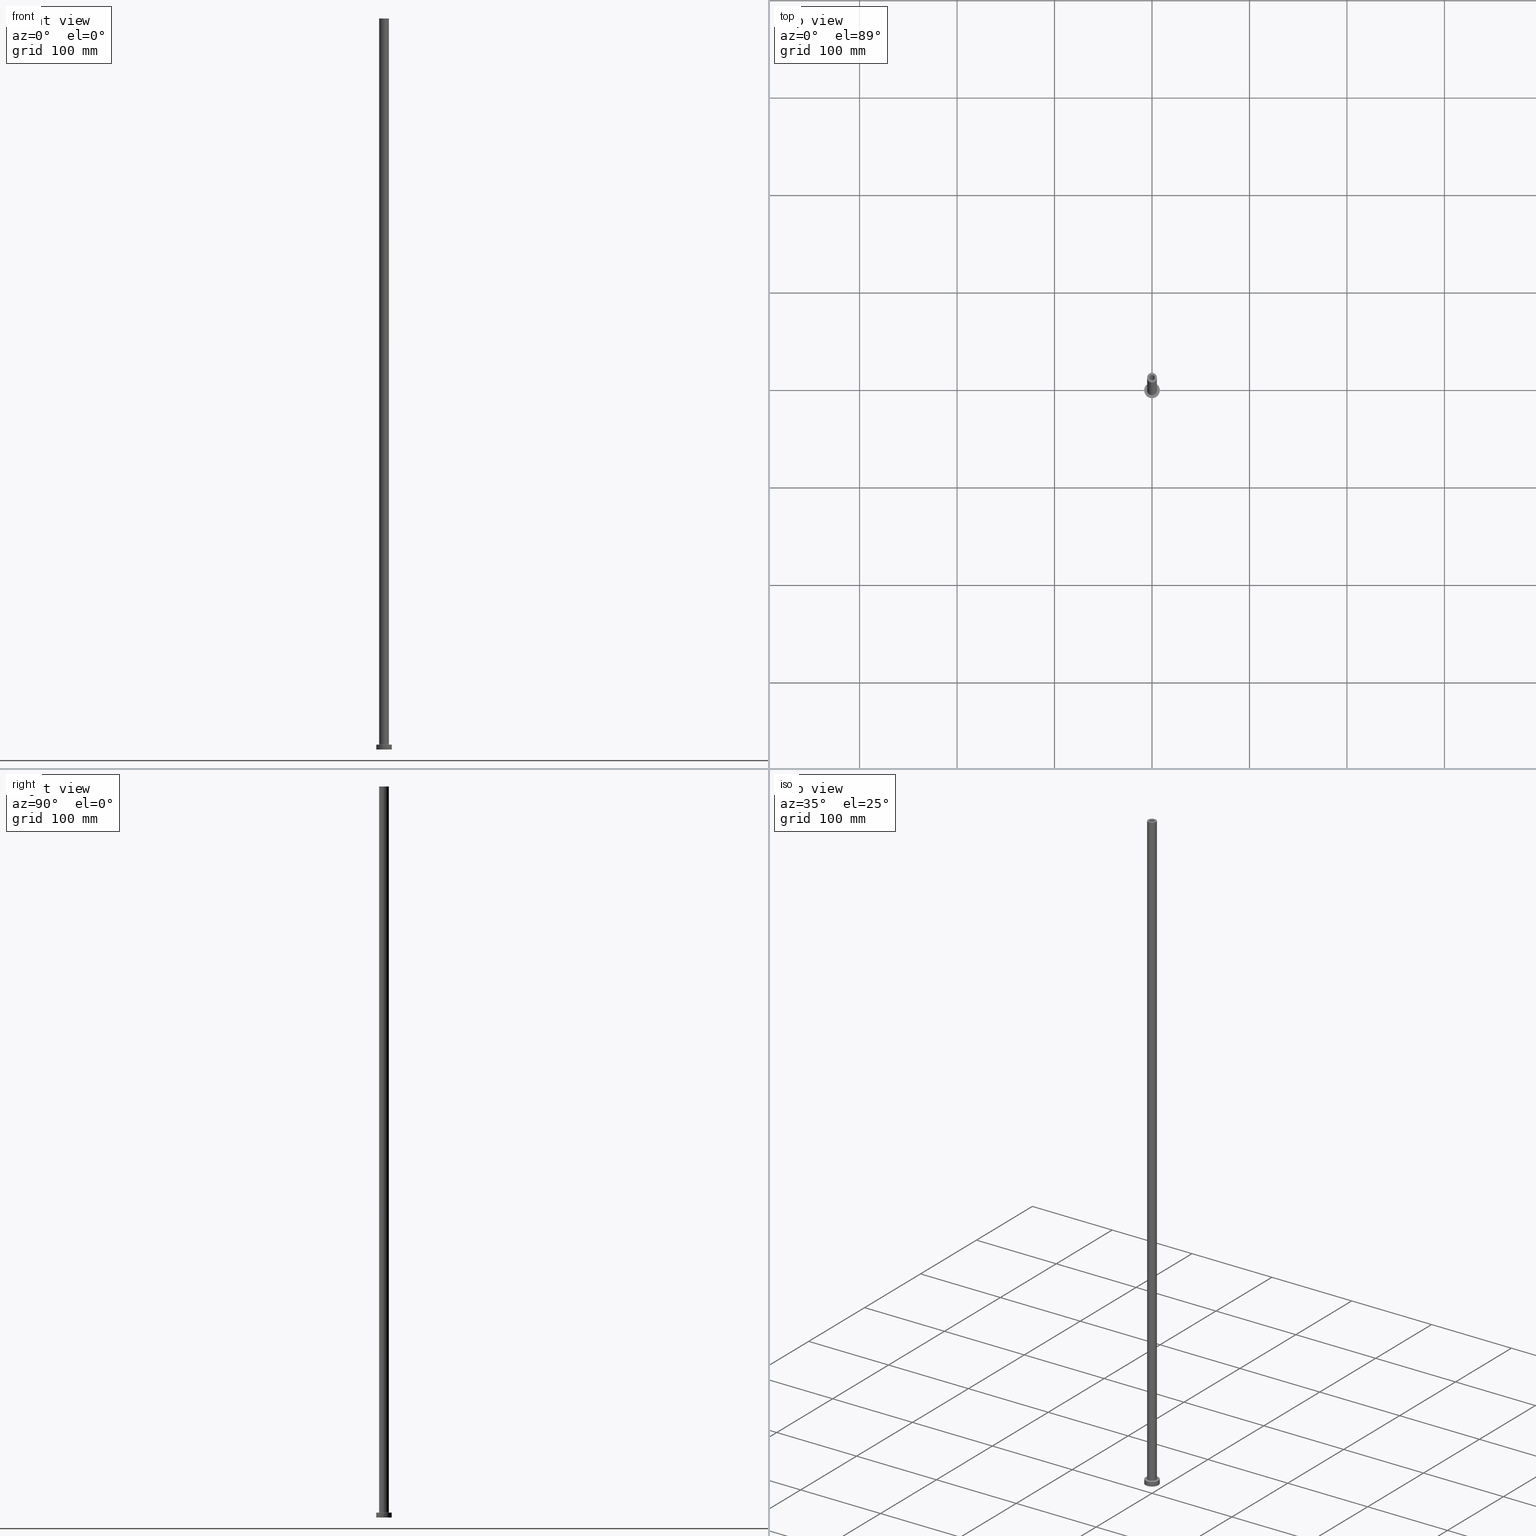
[diagram: canonical four-view strip — front | top / right | iso, engineering-drawing reading convention]
A machine part, canonical four-view strip (front | top / right | iso — engineering-drawing reading convention). The complete STEP part file that produces these views, byte-faithful:
ISO-10303-21;
HEADER;
FILE_DESCRIPTION (( 'STEP AP203' ),
    '1' );
FILE_NAME ('a435.STEP',
    '2023-02-13T16:11:10',
    ( '' ),
    ( '' ),
    'SwSTEP 2.0',
    'SolidWorks 2019',
    '' );
FILE_SCHEMA (( 'CONFIG_CONTROL_DESIGN' ));
ENDSEC;

DATA;
#1 = PERSON_AND_ORGANIZATION_ROLE ( 'classification_officer' ) ;
#2 = ORIENTED_EDGE ( 'NONE', *, *, #330, .F. ) ;
#3 = CC_DESIGN_PERSON_AND_ORGANIZATION_ASSIGNMENT ( #19, #319, ( #293 ) ) ;
#4 = CARTESIAN_POINT ( 'NONE',  ( 0.000000000000000000, 0.000000000000000000, 713.2024386617638356 ) ) ;
#5 = CIRCLE ( 'NONE', #70, 2.899999999999999911 ) ;
#6 = AXIS2_PLACEMENT_3D ( 'NONE', #290, #181, #95 ) ;
#7 = AXIS2_PLACEMENT_3D ( 'NONE', #124, #225, #8 ) ;
#8 = DIRECTION ( 'NONE',  ( 1.000000000000000000, 0.000000000000000000, 0.000000000000000000 ) ) ;
#9 = CARTESIAN_POINT ( 'NONE',  ( 2.899999999999999911, 3.551475717527323832E-16, 0.000000000000000000 ) ) ;
#10 = CARTESIAN_POINT ( 'NONE',  ( 0.000000000000000000, 0.000000000000000000, 0.000000000000000000 ) ) ;
#11 = CARTESIAN_POINT ( 'NONE',  ( 2.899999999999999911, 3.551475717527323832E-16, 705.0000000000000000 ) ) ;
#12 = PERSON ( 'NEUR�EN�', 'NEUR�EN�', 'NEUR�EN�', ('NEUR�EN�'), ('NEUR�EN�'), ('NEUR�EN�') ) ;
#13 = FACE_OUTER_BOUND ( 'NONE', #455, .T. ) ;
#14 = DIRECTION ( 'NONE',  ( -1.000000000000000000, 0.000000000000000000, 0.000000000000000000 ) ) ;
#15 = VECTOR ( 'NONE', #280, 1000.000000000000000 ) ;
#16 = DIRECTION ( 'NONE',  ( 1.000000000000000000, 0.000000000000000000, -0.000000000000000000 ) ) ;
#17 = CARTESIAN_POINT ( 'NONE',  ( 0.000000000000000000, 0.000000000000000000, 5.499999999999949374 ) ) ;
#18 = FACE_OUTER_BOUND ( 'NONE', #286, .T. ) ;
#19 = PERSON_AND_ORGANIZATION ( #12, #23 ) ;
#20 = DIRECTION ( 'NONE',  ( 0.000000000000000000, 0.000000000000000000, -1.000000000000000000 ) ) ;
#21 = DIRECTION ( 'NONE',  ( 0.000000000000000000, 0.000000000000000000, -1.000000000000000000 ) ) ;
#22 = COORDINATED_UNIVERSAL_TIME_OFFSET ( 1, 0, .AHEAD. ) ;
#23 = ORGANIZATION ( 'NEUR�EN�', 'NEUR�EN�', '' ) ;
#24 = CC_DESIGN_APPROVAL ( #179, ( #293 ) ) ;
#25 = VERTEX_POINT ( 'NONE', #144 ) ;
#26 = ORIENTED_EDGE ( 'NONE', *, *, #120, .F. ) ;
#27 = CARTESIAN_POINT ( 'NONE',  ( 0.000000000000000000, 0.000000000000000000, 705.0000000000000000 ) ) ;
#28 = CARTESIAN_POINT ( 'NONE',  ( 0.000000000000000000, 0.000000000000000000, 750.0000000000000000 ) ) ;
#29 = ADVANCED_FACE ( 'NONE', ( #75 ), #166, .F. ) ;
#30 = CARTESIAN_POINT ( 'NONE',  ( 0.000000000000000000, 0.000000000000000000, 750.0000000000000000 ) ) ;
#31 = AXIS2_PLACEMENT_3D ( 'NONE', #10, #428, #76 ) ;
#32 = ORIENTED_EDGE ( 'NONE', *, *, #433, .F. ) ;
#33 = CC_DESIGN_PERSON_AND_ORGANIZATION_ASSIGNMENT ( #117, #1, ( #380 ) ) ;
#34 = AXIS2_PLACEMENT_3D ( 'NONE', #50, #343, #97 ) ;
#35 = ORIENTED_EDGE ( 'NONE', *, *, #266, .T. ) ;
#36 = PERSON_AND_ORGANIZATION ( #12, #23 ) ;
#37 = ADVANCED_FACE ( 'NONE', ( #80 ), #81, .T. ) ;
#38 = SHAPE_DEFINITION_REPRESENTATION ( #125, #226 ) ;
#39 = ORIENTED_EDGE ( 'NONE', *, *, #88, .F. ) ;
#40 = CARTESIAN_POINT ( 'NONE',  ( 0.000000000000000000, 0.000000000000000000, 750.0000000000000000 ) ) ;
#41 = CARTESIAN_POINT ( 'NONE',  ( 0.000000000000000000, 0.000000000000000000, 0.000000000000000000 ) ) ;
#42 = APPROVAL_PERSON_ORGANIZATION ( #255, #227, #368 ) ;
#43 = CIRCLE ( 'NONE', #377, 2.899999999999999911 ) ;
#44 = DIRECTION ( 'NONE',  ( 1.000000000000000000, 0.000000000000000000, 0.000000000000000000 ) ) ;
#45 = CARTESIAN_POINT ( 'NONE',  ( 5.500000000000000000, 0.000000000000000000, 5.499999999999949374 ) ) ;
#46 = CARTESIAN_POINT ( 'NONE',  ( -8.000000000000000000, 0.000000000000000000, 5.000000000000000000 ) ) ;
#47 = ADVANCED_FACE ( 'NONE', ( #190 ), #89, .F. ) ;
#48 = DIRECTION ( 'NONE',  ( 1.000000000000000000, 0.000000000000000000, 0.000000000000000000 ) ) ;
#49 = DIRECTION ( 'NONE',  ( -1.000000000000000000, 0.000000000000000000, 0.000000000000000000 ) ) ;
#50 = CARTESIAN_POINT ( 'NONE',  ( 0.000000000000000000, 0.000000000000000000, 5.499999999999949374 ) ) ;
#51 = AXIS2_PLACEMENT_3D ( 'NONE', #331, #432, #401 ) ;
#52 = AXIS2_PLACEMENT_3D ( 'NONE', #223, #371, #347 ) ;
#53 = CARTESIAN_POINT ( 'NONE',  ( 2.750000000000000000, 3.367778697655221012E-16, 750.0000000000000000 ) ) ;
#54 = LINE ( 'NONE', #46, #197 ) ;
#55 = CC_DESIGN_PERSON_AND_ORGANIZATION_ASSIGNMENT ( #180, #325, ( #440 ) ) ;
#56 = CALENDAR_DATE ( 2023, 13, 2 ) ;
#57 = CARTESIAN_POINT ( 'NONE',  ( -5.000000000000000000, 0.000000000000000000, 750.0000000000000000 ) ) ;
#58 = CIRCLE ( 'NONE', #450, 8.000000000000000000 ) ;
#59 = CARTESIAN_POINT ( 'NONE',  ( 0.000000000000000000, 0.000000000000000000, 750.0000000000000000 ) ) ;
#60 = DIRECTION ( 'NONE',  ( 0.000000000000000000, 0.000000000000000000, 1.000000000000000000 ) ) ;
#61 = ORIENTED_EDGE ( 'NONE', *, *, #441, .T. ) ;
#62 = ORIENTED_EDGE ( 'NONE', *, *, #266, .F. ) ;
#63 = CC_DESIGN_DATE_AND_TIME_ASSIGNMENT ( #442, #198, ( #305 ) ) ;
#64 = FACE_OUTER_BOUND ( 'NONE', #324, .T. ) ;
#65 =( NAMED_UNIT ( * ) PLANE_ANGLE_UNIT ( ) SI_UNIT ( $, .RADIAN. ) );
#66 = ORIENTED_EDGE ( 'NONE', *, *, #209, .T. ) ;
#67 = DIRECTION ( 'NONE',  ( -1.000000000000000000, 0.000000000000000000, 0.000000000000000000 ) ) ;
#68 = AXIS2_PLACEMENT_3D ( 'NONE', #4, #73, #218 ) ;
#69 = ORIENTED_EDGE ( 'NONE', *, *, #92, .F. ) ;
#70 = AXIS2_PLACEMENT_3D ( 'NONE', #405, #165, #128 ) ;
#71 = ORIENTED_EDGE ( 'NONE', *, *, #344, .T. ) ;
#72 = VERTEX_POINT ( 'NONE', #407 ) ;
#73 = DIRECTION ( 'NONE',  ( 0.000000000000000000, 0.000000000000000000, -1.000000000000000000 ) ) ;
#74 = AXIS2_PLACEMENT_3D ( 'NONE', #423, #396, #372 ) ;
#75 = FACE_OUTER_BOUND ( 'NONE', #235, .T. ) ;
#76 = DIRECTION ( 'NONE',  ( 1.000000000000000000, 0.000000000000000000, 0.000000000000000000 ) ) ;
#77 = VECTOR ( 'NONE', #269, 1000.000000000000000 ) ;
#78 = EDGE_CURVE ( 'NONE', #208, #291, #149, .T. ) ;
#79 = ORIENTED_EDGE ( 'NONE', *, *, #451, .F. ) ;
#80 = FACE_OUTER_BOUND ( 'NONE', #262, .T. ) ;
#81 = CYLINDRICAL_SURFACE ( 'NONE', #52, 8.000000000000000000 ) ;
#82 = FACE_OUTER_BOUND ( 'NONE', #118, .T. ) ;
#83 = APPLICATION_PROTOCOL_DEFINITION ( 'international standard', 'config_control_design', 1994, #141 ) ;
#84 = AXIS2_PLACEMENT_3D ( 'NONE', #131, #409, #94 ) ;
#85 = APPROVAL_PERSON_ORGANIZATION ( #159, #179, #238 ) ;
#86 = CARTESIAN_POINT ( 'NONE',  ( 0.000000000000000000, 0.000000000000000000, 0.000000000000000000 ) ) ;
#87 = LINE ( 'NONE', #196, #334 ) ;
#88 = EDGE_CURVE ( 'NONE', #233, #184, #278, .T. ) ;
#89 = CYLINDRICAL_SURFACE ( 'NONE', #358, 2.750000000000000000 ) ;
#90 = CARTESIAN_POINT ( 'NONE',  ( 5.000000000000000000, 6.123233995736766282E-16, 750.0000000000000000 ) ) ;
#91 = DIRECTION ( 'NONE',  ( -1.000000000000000000, 0.000000000000000000, 0.000000000000000000 ) ) ;
#92 = EDGE_CURVE ( 'NONE', #245, #399, #5, .T. ) ;
#93 = DATE_AND_TIME ( #56, #439 ) ;
#94 = DIRECTION ( 'NONE',  ( 1.000000000000000000, 0.000000000000000000, -0.000000000000000000 ) ) ;
#95 = DIRECTION ( 'NONE',  ( 1.000000000000000000, 0.000000000000000000, 0.000000000000000000 ) ) ;
#96 = DIRECTION ( 'NONE',  ( 0.000000000000000000, 0.000000000000000000, 1.000000000000000000 ) ) ;
#97 = DIRECTION ( 'NONE',  ( 1.000000000000000000, 0.000000000000000000, 0.000000000000000000 ) ) ;
#98 = LINE ( 'NONE', #236, #387 ) ;
#99 = CARTESIAN_POINT ( 'NONE',  ( 0.000000000000000000, 0.000000000000000000, 750.0000000000000000 ) ) ;
#100 = VERTEX_POINT ( 'NONE', #53 ) ;
#101 = AXIS2_PLACEMENT_3D ( 'NONE', #28, #171, #390 ) ;
#102 = DATE_AND_TIME ( #340, #130 ) ;
#103 = ADVANCED_FACE ( 'NONE', ( #153, #304 ), #161, .F. ) ;
#104 = ORIENTED_EDGE ( 'NONE', *, *, #441, .F. ) ;
#105 = ORIENTED_EDGE ( 'NONE', *, *, #156, .F. ) ;
#106 = VERTEX_POINT ( 'NONE', #381 ) ;
#107 = CC_DESIGN_APPROVAL ( #360, ( #305 ) ) ;
#108 = ORIENTED_EDGE ( 'NONE', *, *, #189, .T. ) ;
#109 = COORDINATED_UNIVERSAL_TIME_OFFSET ( 1, 0, .AHEAD. ) ;
#110 = CALENDAR_DATE ( 2023, 13, 2 ) ;
#111 = VERTEX_POINT ( 'NONE', #436 ) ;
#112 = ORIENTED_EDGE ( 'NONE', *, *, #419, .T. ) ;
#113 = EDGE_CURVE ( 'NONE', #72, #233, #411, .T. ) ;
#114 = DIRECTION ( 'NONE',  ( 1.000000000000000000, 0.000000000000000000, 0.000000000000000000 ) ) ;
#115 = EDGE_LOOP ( 'NONE', ( #461, #426 ) ) ;
#116 = AXIS2_PLACEMENT_3D ( 'NONE', #40, #303, #382 ) ;
#117 = PERSON_AND_ORGANIZATION ( #12, #23 ) ;
#118 = EDGE_LOOP ( 'NONE', ( #240, #248 ) ) ;
#119 = DIRECTION ( 'NONE',  ( 1.000000000000000000, 0.000000000000000000, 0.000000000000000000 ) ) ;
#120 = EDGE_CURVE ( 'NONE', #138, #111, #87, .T. ) ;
#121 = CARTESIAN_POINT ( 'NONE',  ( 0.000000000000000000, 0.000000000000000000, 750.0000000000000000 ) ) ;
#122 = CIRCLE ( 'NONE', #224, 2.750000000000000000 ) ;
#123 = CARTESIAN_POINT ( 'NONE',  ( 0.000000000000000000, 0.000000000000000000, 750.0000000000000000 ) ) ;
#124 = CARTESIAN_POINT ( 'NONE',  ( 0.000000000000000000, 0.000000000000000000, 705.0000000000000000 ) ) ;
#125 = PRODUCT_DEFINITION_SHAPE ( 'NONE', 'NONE',  #305 ) ;
#126 = EDGE_CURVE ( 'NONE', #175, #211, #446, .T. ) ;
#127 = CARTESIAN_POINT ( 'NONE',  ( 0.000000000000000000, 0.000000000000000000, 5.000000000000000000 ) ) ;
#128 = DIRECTION ( 'NONE',  ( 1.000000000000000000, 0.000000000000000000, 0.000000000000000000 ) ) ;
#129 = CARTESIAN_POINT ( 'NONE',  ( -5.000000000000000000, 0.000000000000000000, 750.0000000000000000 ) ) ;
#130 = LOCAL_TIME ( 17, 11, 10.00000000000000000, #22 ) ;
#131 = CARTESIAN_POINT ( 'NONE',  ( 0.000000000000000000, 0.000000000000000000, 750.0000000000000000 ) ) ;
#132 = EDGE_CURVE ( 'NONE', #297, #111, #421, .T. ) ;
#133 = ORIENTED_EDGE ( 'NONE', *, *, #135, .F. ) ;
#134 = ORIENTED_EDGE ( 'NONE', *, *, #451, .T. ) ;
#135 = EDGE_CURVE ( 'NONE', #292, #208, #168, .T. ) ;
#136 = APPROVAL_ROLE ( '' ) ;
#137 = AXIS2_PLACEMENT_3D ( 'NONE', #140, #191, #114 ) ;
#138 = VERTEX_POINT ( 'NONE', #404 ) ;
#139 = APPROVAL_STATUS ( 'not_yet_approved' ) ;
#140 = CARTESIAN_POINT ( 'NONE',  ( 0.000000000000000000, 0.000000000000000000, 5.000000000000000000 ) ) ;
#141 = APPLICATION_CONTEXT ( 'configuration controlled 3d designs of mechanical parts and assemblies' ) ;
#142 = ORIENTED_EDGE ( 'NONE', *, *, #135, .T. ) ;
#143 = ORIENTED_EDGE ( 'NONE', *, *, #172, .T. ) ;
#144 = CARTESIAN_POINT ( 'NONE',  ( -8.000000000000000000, 0.000000000000000000, 5.000000000000000000 ) ) ;
#145 = CYLINDRICAL_SURFACE ( 'NONE', #395, 2.899999999999999911 ) ;
#146 = ORIENTED_EDGE ( 'NONE', *, *, #88, .T. ) ;
#147 = AXIS2_PLACEMENT_3D ( 'NONE', #99, #205, #354 ) ;
#148 = FACE_BOUND ( 'NONE', #249, .T. ) ;
#149 = CIRCLE ( 'NONE', #214, 0.5000000000000004441 ) ;
#150 = EDGE_LOOP ( 'NONE', ( #364, #170, #174, #210 ) ) ;
#151 = PLANE ( 'NONE',  #326 ) ;
#152 = DESIGN_CONTEXT ( 'detailed design', #241, 'design' ) ;
#153 = FACE_BOUND ( 'NONE', #239, .T. ) ;
#154 = CARTESIAN_POINT ( 'NONE',  ( 0.000000000000000000, 0.000000000000000000, 5.000000000000000000 ) ) ;
#155 = AXIS2_PLACEMENT_3D ( 'NONE', #123, #21, #91 ) ;
#156 = EDGE_CURVE ( 'NONE', #361, #452, #43, .T. ) ;
#157 = DIRECTION ( 'NONE',  ( -0.000000000000000000, -0.000000000000000000, -1.000000000000000000 ) ) ;
#158 = FACE_OUTER_BOUND ( 'NONE', #389, .T. ) ;
#159 = PERSON_AND_ORGANIZATION ( #12, #23 ) ;
#160 = DIRECTION ( 'NONE',  ( 0.000000000000000000, 0.000000000000000000, 1.000000000000000000 ) ) ;
#161 = PLANE ( 'NONE',  #230 ) ;
#162 = DIRECTION ( 'NONE',  ( -0.000000000000000000, -0.000000000000000000, -1.000000000000000000 ) ) ;
#163 = DIRECTION ( 'NONE',  ( 0.000000000000000000, 0.000000000000000000, -1.000000000000000000 ) ) ;
#164 = CARTESIAN_POINT ( 'NONE',  ( -2.899999999999999911, 0.000000000000000000, 705.0000000000000000 ) ) ;
#165 = DIRECTION ( 'NONE',  ( 0.000000000000000000, 0.000000000000000000, 1.000000000000000000 ) ) ;
#166 = TOROIDAL_SURFACE ( 'NONE', #212, 5.500000000000000000, 0.5000000000000000000 ) ;
#167 = DIRECTION ( 'NONE',  ( 1.000000000000000000, 0.000000000000000000, 0.000000000000000000 ) ) ;
#168 = LINE ( 'NONE', #57, #77 ) ;
#169 = LOCAL_TIME ( 17, 11, 10.00000000000000000, #443 ) ;
#170 = ORIENTED_EDGE ( 'NONE', *, *, #298, .F. ) ;
#171 = DIRECTION ( 'NONE',  ( 0.000000000000000000, 0.000000000000000000, 1.000000000000000000 ) ) ;
#172 = EDGE_CURVE ( 'NONE', #399, #361, #318, .T. ) ;
#173 = DIRECTION ( 'NONE',  ( 0.000000000000000000, 0.000000000000000000, 1.000000000000000000 ) ) ;
#174 = ORIENTED_EDGE ( 'NONE', *, *, #126, .T. ) ;
#175 = VERTEX_POINT ( 'NONE', #447 ) ;
#176 = DIRECTION ( 'NONE',  ( -0.000000000000000000, -0.000000000000000000, -1.000000000000000000 ) ) ;
#177 = ORIENTED_EDGE ( 'NONE', *, *, #294, .T. ) ;
#178 = CIRCLE ( 'NONE', #231, 5.000000000000000000 ) ;
#179 = APPROVAL ( #274, 'NEUR�EN�' ) ;
#180 = PERSON_AND_ORGANIZATION ( #12, #23 ) ;
#181 = DIRECTION ( 'NONE',  ( 0.000000000000000000, 0.000000000000000000, 1.000000000000000000 ) ) ;
#182 = DIRECTION ( 'NONE',  ( 1.000000000000000000, 0.000000000000000000, 0.000000000000000000 ) ) ;
#183 = DATE_AND_TIME ( #427, #295 ) ;
#184 = VERTEX_POINT ( 'NONE', #282 ) ;
#185 = ORIENTED_EDGE ( 'NONE', *, *, #433, .T. ) ;
#186 = ORIENTED_EDGE ( 'NONE', *, *, #113, .F. ) ;
#187 = FACE_OUTER_BOUND ( 'NONE', #397, .T. ) ;
#188 = DIRECTION ( 'NONE',  ( 1.000000000000000000, 0.000000000000000000, 0.000000000000000000 ) ) ;
#189 = EDGE_CURVE ( 'NONE', #292, #106, #220, .T. ) ;
#190 = FACE_OUTER_BOUND ( 'NONE', #370, .T. ) ;
#191 = DIRECTION ( 'NONE',  ( -0.000000000000000000, -0.000000000000000000, -1.000000000000000000 ) ) ;
#192 = CARTESIAN_POINT ( 'NONE',  ( -2.750000000000000000, 0.000000000000000000, 705.0000000000000000 ) ) ;
#193 = DIRECTION ( 'NONE',  ( 0.000000000000000000, -1.000000000000000000, 0.000000000000000000 ) ) ;
#194 = CARTESIAN_POINT ( 'NONE',  ( 0.000000000000000000, 0.000000000000000000, 0.000000000000000000 ) ) ;
#195 = EDGE_CURVE ( 'NONE', #106, #292, #203, .T. ) ;
#196 = CARTESIAN_POINT ( 'NONE',  ( 8.000000000000000000, 9.797174393178825657E-16, 5.000000000000000000 ) ) ;
#197 = VECTOR ( 'NONE', #339, 1000.000000000000000 ) ;
#198 = DATE_TIME_ROLE ( 'creation_date' ) ;
#199 = DIRECTION ( 'NONE',  ( 0.000000000000000000, 0.000000000000000000, 1.000000000000000000 ) ) ;
#200 = CARTESIAN_POINT ( 'NONE',  ( -8.000000000000000000, 0.000000000000000000, 0.000000000000000000 ) ) ;
#201 = ADVANCED_FACE ( 'NONE', ( #64 ), #228, .F. ) ;
#202 = ORIENTED_EDGE ( 'NONE', *, *, #189, .F. ) ;
#203 = CIRCLE ( 'NONE', #101, 5.000000000000000000 ) ;
#204 = CARTESIAN_POINT ( 'NONE',  ( -5.500000000000000000, 6.735557395310442023E-16, 4.999999999999975131 ) ) ;
#205 = DIRECTION ( 'NONE',  ( 0.000000000000000000, 0.000000000000000000, 1.000000000000000000 ) ) ;
#206 = ORIENTED_EDGE ( 'NONE', *, *, #234, .T. ) ;
#207 = ORIENTED_EDGE ( 'NONE', *, *, #247, .T. ) ;
#208 = VERTEX_POINT ( 'NONE', #276 ) ;
#209 = EDGE_CURVE ( 'NONE', #25, #297, #54, .T. ) ;
#210 = ORIENTED_EDGE ( 'NONE', *, *, #272, .F. ) ;
#211 = VERTEX_POINT ( 'NONE', #337 ) ;
#212 = AXIS2_PLACEMENT_3D ( 'NONE', #400, #302, #267 ) ;
#213 = APPROVAL_PERSON_ORGANIZATION ( #36, #360, #136 ) ;
#214 = AXIS2_PLACEMENT_3D ( 'NONE', #312, #268, #336 ) ;
#215 = ORIENTED_EDGE ( 'NONE', *, *, #247, .F. ) ;
#216 = ORIENTED_EDGE ( 'NONE', *, *, #209, .F. ) ;
#217 = ORIENTED_EDGE ( 'NONE', *, *, #330, .T. ) ;
#218 = DIRECTION ( 'NONE',  ( -1.000000000000000000, 0.000000000000000000, 0.000000000000000000 ) ) ;
#219 = CC_DESIGN_PERSON_AND_ORGANIZATION_ASSIGNMENT ( #445, #413, ( #293 ) ) ;
#220 = CIRCLE ( 'NONE', #147, 5.000000000000000000 ) ;
#221 = CYLINDRICAL_SURFACE ( 'NONE', #68, 2.899999999999999911 ) ;
#222 = CC_DESIGN_DATE_AND_TIME_ASSIGNMENT ( #460, #260, ( #380 ) ) ;
#223 = CARTESIAN_POINT ( 'NONE',  ( 0.000000000000000000, 0.000000000000000000, 5.000000000000000000 ) ) ;
#224 = AXIS2_PLACEMENT_3D ( 'NONE', #229, #96, #167 ) ;
#225 = DIRECTION ( 'NONE',  ( 0.000000000000000000, 0.000000000000000000, 1.000000000000000000 ) ) ;
#226 = ADVANCED_BREP_SHAPE_REPRESENTATION ( 'a435', ( #246, #6 ), #357 ) ;
#227 = APPROVAL ( #139, 'NEUR�EN�' ) ;
#228 = CYLINDRICAL_SURFACE ( 'NONE', #155, 2.750000000000000000 ) ;
#229 = CARTESIAN_POINT ( 'NONE',  ( 0.000000000000000000, 0.000000000000000000, 750.0000000000000000 ) ) ;
#230 = AXIS2_PLACEMENT_3D ( 'NONE', #275, #383, #16 ) ;
#231 = AXIS2_PLACEMENT_3D ( 'NONE', #17, #277, #414 ) ;
#232 = DIRECTION ( 'NONE',  ( 0.000000000000000000, 0.000000000000000000, -1.000000000000000000 ) ) ;
#233 = VERTEX_POINT ( 'NONE', #192 ) ;
#234 = EDGE_CURVE ( 'NONE', #106, #175, #348, .T. ) ;
#235 = EDGE_LOOP ( 'NONE', ( #215, #321, #257, #327 ) ) ;
#236 = CARTESIAN_POINT ( 'NONE',  ( 2.750000000000000000, 3.367778697655221012E-16, 750.0000000000000000 ) ) ;
#237 = DIRECTION ( 'NONE',  ( -0.000000000000000000, -0.000000000000000000, -1.000000000000000000 ) ) ;
#238 = APPROVAL_ROLE ( '' ) ;
#239 = EDGE_LOOP ( 'NONE', ( #146, #134 ) ) ;
#240 = ORIENTED_EDGE ( 'NONE', *, *, #132, .F. ) ;
#241 = APPLICATION_CONTEXT ( 'configuration controlled 3d designs of mechanical parts and assemblies' ) ;
#242 = TOROIDAL_SURFACE ( 'NONE', #51, 5.500000000000000000, 0.5000000000000000000 ) ;
#243 = CC_DESIGN_APPROVAL ( #227, ( #380 ) ) ;
#244 = CYLINDRICAL_SURFACE ( 'NONE', #417, 5.000000000000000000 ) ;
#245 = VERTEX_POINT ( 'NONE', #11 ) ;
#246 = MANIFOLD_SOLID_BREP ( 'Odebrat vysunut�m4', #250 ) ;
#247 = EDGE_CURVE ( 'NONE', #208, #175, #351, .T. ) ;
#248 = ORIENTED_EDGE ( 'NONE', *, *, #344, .F. ) ;
#249 = EDGE_LOOP ( 'NONE', ( #105, #261 ) ) ;
#250 = CLOSED_SHELL ( 'NONE', ( #201, #367, #29, #448, #37, #256, #459, #388, #425, #406, #376, #375, #103, #47 ) ) ;
#251 = LINE ( 'NONE', #359, #306 ) ;
#252 =( NAMED_UNIT ( * ) SI_UNIT ( $, .STERADIAN. ) SOLID_ANGLE_UNIT ( ) );
#253 = AXIS2_PLACEMENT_3D ( 'NONE', #45, #193, #308 ) ;
#254 = ORIENTED_EDGE ( 'NONE', *, *, #285, .T. ) ;
#255 = PERSON_AND_ORGANIZATION ( #12, #23 ) ;
#256 = ADVANCED_FACE ( 'NONE', ( #158 ), #271, .T. ) ;
#257 = ORIENTED_EDGE ( 'NONE', *, *, #338, .F. ) ;
#258 = COORDINATED_UNIVERSAL_TIME_OFFSET ( 1, 0, .AHEAD. ) ;
#259 = FACE_OUTER_BOUND ( 'NONE', #456, .T. ) ;
#260 = DATE_TIME_ROLE ( 'classification_date' ) ;
#261 = ORIENTED_EDGE ( 'NONE', *, *, #285, .F. ) ;
#262 = EDGE_LOOP ( 'NONE', ( #104, #398, #71, #216 ) ) ;
#263 = DIRECTION ( 'NONE',  ( -1.000000000000000000, 0.000000000000000000, 0.000000000000000000 ) ) ;
#264 = CIRCLE ( 'NONE', #410, 5.500000000000000000 ) ;
#265 = EDGE_LOOP ( 'NONE', ( #108, #457 ) ) ;
#266 = EDGE_CURVE ( 'NONE', #25, #138, #58, .T. ) ;
#267 = DIRECTION ( 'NONE',  ( 1.000000000000000000, 0.000000000000000000, 0.000000000000000000 ) ) ;
#268 = DIRECTION ( 'NONE',  ( 1.224646799147353207E-16, 1.000000000000000000, -0.000000000000000000 ) ) ;
#269 = DIRECTION ( 'NONE',  ( -0.000000000000000000, -0.000000000000000000, -1.000000000000000000 ) ) ;
#270 = CARTESIAN_POINT ( 'NONE',  ( -2.750000000000000000, 0.000000000000000000, 750.0000000000000000 ) ) ;
#271 = CYLINDRICAL_SURFACE ( 'NONE', #350, 8.000000000000000000 ) ;
#272 = EDGE_CURVE ( 'NONE', #291, #211, #264, .T. ) ;
#273 = DIRECTION ( 'NONE',  ( 1.000000000000000000, 0.000000000000000000, 0.000000000000000000 ) ) ;
#274 = APPROVAL_STATUS ( 'not_yet_approved' ) ;
#275 = CARTESIAN_POINT ( 'NONE',  ( 0.000000000000000000, 0.000000000000000000, 705.0000000000000000 ) ) ;
#276 = CARTESIAN_POINT ( 'NONE',  ( -5.000000000000000000, 0.000000000000000000, 5.499999999999949374 ) ) ;
#277 = DIRECTION ( 'NONE',  ( 0.000000000000000000, 0.000000000000000000, 1.000000000000000000 ) ) ;
#278 = CIRCLE ( 'NONE', #7, 2.750000000000000000 ) ;
#279 = CC_DESIGN_PERSON_AND_ORGANIZATION_ASSIGNMENT ( #378, #449, ( #305 ) ) ;
#280 = DIRECTION ( 'NONE',  ( -0.000000000000000000, -0.000000000000000000, -1.000000000000000000 ) ) ;
#281 = CARTESIAN_POINT ( 'NONE',  ( 0.000000000000000000, 0.000000000000000000, 5.000000000000000000 ) ) ;
#282 = CARTESIAN_POINT ( 'NONE',  ( 2.750000000000000000, 3.367778697655221012E-16, 705.0000000000000000 ) ) ;
#283 = FACE_BOUND ( 'NONE', #115, .T. ) ;
#284 = DIRECTION ( 'NONE',  ( 0.000000000000000000, 0.000000000000000000, 1.000000000000000000 ) ) ;
#285 = EDGE_CURVE ( 'NONE', #452, #361, #366, .T. ) ;
#286 = EDGE_LOOP ( 'NONE', ( #458, #206, #385, #133 ) ) ;
#287 = CIRCLE ( 'NONE', #74, 8.000000000000000000 ) ;
#288 = AXIS2_PLACEMENT_3D ( 'NONE', #322, #60, #119 ) ;
#289 = DIRECTION ( 'NONE',  ( 0.000000000000000000, 0.000000000000000000, 1.000000000000000000 ) ) ;
#290 = CARTESIAN_POINT ( 'NONE',  ( 0.000000000000000000, 0.000000000000000000, 0.000000000000000000 ) ) ;
#291 = VERTEX_POINT ( 'NONE', #204 ) ;
#292 = VERTEX_POINT ( 'NONE', #129 ) ;
#293 = PRODUCT_DEFINITION_FORMATION_WITH_SPECIFIED_SOURCE ( 'LIBOVOLN�', '', #440, .NOT_KNOWN. ) ;
#294 = EDGE_CURVE ( 'NONE', #72, #100, #122, .T. ) ;
#295 = LOCAL_TIME ( 17, 11, 10.00000000000000000, #258 ) ;
#296 = DIRECTION ( 'NONE',  ( 0.000000000000000000, 0.000000000000000000, -1.000000000000000000 ) ) ;
#297 = VERTEX_POINT ( 'NONE', #200 ) ;
#298 = EDGE_CURVE ( 'NONE', #175, #208, #178, .T. ) ;
#299 = VECTOR ( 'NONE', #163, 1000.000000000000000 ) ;
#300 = AXIS2_PLACEMENT_3D ( 'NONE', #345, #313, #188 ) ;
#301 = CC_DESIGN_SECURITY_CLASSIFICATION ( #380, ( #293 ) ) ;
#302 = DIRECTION ( 'NONE',  ( 0.000000000000000000, 0.000000000000000000, 1.000000000000000000 ) ) ;
#303 = DIRECTION ( 'NONE',  ( -0.000000000000000000, -0.000000000000000000, -1.000000000000000000 ) ) ;
#304 = FACE_OUTER_BOUND ( 'NONE', #394, .T. ) ;
#305 = PRODUCT_DEFINITION ( 'NEZN�M�', '', #293, #152 ) ;
#306 = VECTOR ( 'NONE', #329, 1000.000000000000000 ) ;
#307 = DIRECTION ( 'NONE',  ( -0.000000000000000000, -0.000000000000000000, -1.000000000000000000 ) ) ;
#308 = DIRECTION ( 'NONE',  ( 0.000000000000000000, 0.000000000000000000, -1.000000000000000000 ) ) ;
#309 = CARTESIAN_POINT ( 'NONE',  ( 0.000000000000000000, 0.000000000000000000, 5.000000000000000000 ) ) ;
#310 = DIRECTION ( 'NONE',  ( 1.000000000000000000, 0.000000000000000000, 0.000000000000000000 ) ) ;
#311 = PLANE ( 'NONE',  #84 ) ;
#312 = CARTESIAN_POINT ( 'NONE',  ( -5.500000000000000000, 6.735557395310442023E-16, 5.499999999999949374 ) ) ;
#313 = DIRECTION ( 'NONE',  ( 0.000000000000000000, 0.000000000000000000, 1.000000000000000000 ) ) ;
#314 = EDGE_CURVE ( 'NONE', #100, #184, #98, .T. ) ;
#315 = AXIS2_PLACEMENT_3D ( 'NONE', #59, #173, #320 ) ;
#316 = CARTESIAN_POINT ( 'NONE',  ( -2.899999999999999911, 0.000000000000000000, 713.2024386617638356 ) ) ;
#317 = APPROVAL_DATE_TIME ( #102, #360 ) ;
#318 = LINE ( 'NONE', #316, #299 ) ;
#319 = PERSON_AND_ORGANIZATION_ROLE ( 'creator' ) ;
#320 = DIRECTION ( 'NONE',  ( 1.000000000000000000, 0.000000000000000000, 0.000000000000000000 ) ) ;
#321 = ORIENTED_EDGE ( 'NONE', *, *, #78, .T. ) ;
#322 = CARTESIAN_POINT ( 'NONE',  ( 0.000000000000000000, 0.000000000000000000, 0.000000000000000000 ) ) ;
#323 =( LENGTH_UNIT ( ) NAMED_UNIT ( * ) SI_UNIT ( .MILLI., .METRE. ) );
#324 = EDGE_LOOP ( 'NONE', ( #177, #356, #39, #186 ) ) ;
#325 = PERSON_AND_ORGANIZATION_ROLE ( 'design_owner' ) ;
#326 = AXIS2_PLACEMENT_3D ( 'NONE', #154, #284, #355 ) ;
#327 = ORIENTED_EDGE ( 'NONE', *, *, #126, .F. ) ;
#328 = ORIENTED_EDGE ( 'NONE', *, *, #172, .F. ) ;
#329 = DIRECTION ( 'NONE',  ( 0.000000000000000000, 0.000000000000000000, -1.000000000000000000 ) ) ;
#330 = EDGE_CURVE ( 'NONE', #399, #245, #341, .T. ) ;
#331 = CARTESIAN_POINT ( 'NONE',  ( 0.000000000000000000, 0.000000000000000000, 5.499999999999949374 ) ) ;
#332 = VECTOR ( 'NONE', #20, 1000.000000000000000 ) ;
#333 = AXIS2_PLACEMENT_3D ( 'NONE', #41, #160, #349 ) ;
#334 = VECTOR ( 'NONE', #157, 1000.000000000000000 ) ;
#335 = APPROVAL_DATE_TIME ( #183, #227 ) ;
#336 = DIRECTION ( 'NONE',  ( -1.000000000000000000, 1.224646799147351482E-16, 0.000000000000000000 ) ) ;
#337 = CARTESIAN_POINT ( 'NONE',  ( 5.500000000000000000, 0.000000000000000000, 4.999999999999975131 ) ) ;
#338 = EDGE_CURVE ( 'NONE', #211, #291, #438, .T. ) ;
#339 = DIRECTION ( 'NONE',  ( -0.000000000000000000, -0.000000000000000000, -1.000000000000000000 ) ) ;
#340 = CALENDAR_DATE ( 2023, 13, 2 ) ;
#341 = CIRCLE ( 'NONE', #374, 2.899999999999999911 ) ;
#342 = CYLINDRICAL_SURFACE ( 'NONE', #116, 5.000000000000000000 ) ;
#343 = DIRECTION ( 'NONE',  ( 0.000000000000000000, 0.000000000000000000, 1.000000000000000000 ) ) ;
#344 = EDGE_CURVE ( 'NONE', #111, #297, #430, .T. ) ;
#345 = CARTESIAN_POINT ( 'NONE',  ( 0.000000000000000000, 0.000000000000000000, 705.0000000000000000 ) ) ;
#346 = DIRECTION ( 'NONE',  ( -0.000000000000000000, -0.000000000000000000, -1.000000000000000000 ) ) ;
#347 = DIRECTION ( 'NONE',  ( -1.000000000000000000, 0.000000000000000000, 0.000000000000000000 ) ) ;
#348 = LINE ( 'NONE', #90, #15 ) ;
#349 = DIRECTION ( 'NONE',  ( 1.000000000000000000, 0.000000000000000000, -0.000000000000000000 ) ) ;
#350 = AXIS2_PLACEMENT_3D ( 'NONE', #309, #162, #14 ) ;
#351 = CIRCLE ( 'NONE', #34, 5.000000000000000000 ) ;
#352 = ORIENTED_EDGE ( 'NONE', *, *, #272, .T. ) ;
#353 = DIRECTION ( 'NONE',  ( 0.000000000000000000, 0.000000000000000000, -1.000000000000000000 ) ) ;
#354 = DIRECTION ( 'NONE',  ( 1.000000000000000000, 0.000000000000000000, 0.000000000000000000 ) ) ;
#355 = DIRECTION ( 'NONE',  ( 1.000000000000000000, 0.000000000000000000, -0.000000000000000000 ) ) ;
#356 = ORIENTED_EDGE ( 'NONE', *, *, #314, .T. ) ;
#357 =( GEOMETRIC_REPRESENTATION_CONTEXT ( 3 ) GLOBAL_UNCERTAINTY_ASSIGNED_CONTEXT ( ( #434 ) ) GLOBAL_UNIT_ASSIGNED_CONTEXT ( ( #323, #65, #252 ) ) REPRESENTATION_CONTEXT ( 'NONE', 'WORKASPACE' ) );
#358 = AXIS2_PLACEMENT_3D ( 'NONE', #121, #232, #49 ) ;
#359 = CARTESIAN_POINT ( 'NONE',  ( 2.899999999999999911, 3.551475717527323832E-16, 713.2024386617638356 ) ) ;
#360 = APPROVAL ( #362, 'NEUR�EN�' ) ;
#361 = VERTEX_POINT ( 'NONE', #429 ) ;
#362 = APPROVAL_STATUS ( 'not_yet_approved' ) ;
#363 = EDGE_LOOP ( 'NONE', ( #393, #202, #142, #207 ) ) ;
#364 = ORIENTED_EDGE ( 'NONE', *, *, #78, .F. ) ;
#365 = CARTESIAN_POINT ( 'NONE',  ( 0.000000000000000000, 0.000000000000000000, 713.2024386617638356 ) ) ;
#366 = CIRCLE ( 'NONE', #422, 2.899999999999999911 ) ;
#367 = ADVANCED_FACE ( 'NONE', ( #259 ), #221, .F. ) ;
#368 = APPROVAL_ROLE ( '' ) ;
#369 = FACE_OUTER_BOUND ( 'NONE', #150, .T. ) ;
#370 = EDGE_LOOP ( 'NONE', ( #424, #112, #454, #79 ) ) ;
#371 = DIRECTION ( 'NONE',  ( -0.000000000000000000, -0.000000000000000000, -1.000000000000000000 ) ) ;
#372 = DIRECTION ( 'NONE',  ( 1.000000000000000000, 0.000000000000000000, 0.000000000000000000 ) ) ;
#373 = PLANE ( 'NONE',  #333 ) ;
#374 = AXIS2_PLACEMENT_3D ( 'NONE', #27, #289, #182 ) ;
#375 = ADVANCED_FACE ( 'NONE', ( #187 ), #145, .F. ) ;
#376 = ADVANCED_FACE ( 'NONE', ( #369 ), #242, .F. ) ;
#377 = AXIS2_PLACEMENT_3D ( 'NONE', #86, #237, #44 ) ;
#378 = PERSON_AND_ORGANIZATION ( #12, #23 ) ;
#379 = CIRCLE ( 'NONE', #300, 2.750000000000000000 ) ;
#380 = SECURITY_CLASSIFICATION ( '', '', #384 ) ;
#381 = CARTESIAN_POINT ( 'NONE',  ( 5.000000000000000000, 6.123233995736766282E-16, 750.0000000000000000 ) ) ;
#382 = DIRECTION ( 'NONE',  ( -1.000000000000000000, 0.000000000000000000, 0.000000000000000000 ) ) ;
#383 = DIRECTION ( 'NONE',  ( 0.000000000000000000, 0.000000000000000000, 1.000000000000000000 ) ) ;
#384 = SECURITY_CLASSIFICATION_LEVEL ( 'unclassified' ) ;
#385 = ORIENTED_EDGE ( 'NONE', *, *, #298, .T. ) ;
#386 = APPROVAL_DATE_TIME ( #93, #179 ) ;
#387 = VECTOR ( 'NONE', #353, 1000.000000000000000 ) ;
#388 = ADVANCED_FACE ( 'NONE', ( #148, #82 ), #373, .F. ) ;
#389 = EDGE_LOOP ( 'NONE', ( #26, #62, #66, #420 ) ) ;
#390 = DIRECTION ( 'NONE',  ( 1.000000000000000000, 0.000000000000000000, 0.000000000000000000 ) ) ;
#391 = ORIENTED_EDGE ( 'NONE', *, *, #92, .T. ) ;
#392 = PRODUCT_RELATED_PRODUCT_CATEGORY ( 'detail', '', ( #440 ) ) ;
#393 = ORIENTED_EDGE ( 'NONE', *, *, #234, .F. ) ;
#394 = EDGE_LOOP ( 'NONE', ( #2, #69 ) ) ;
#395 = AXIS2_PLACEMENT_3D ( 'NONE', #365, #296, #263 ) ;
#396 = DIRECTION ( 'NONE',  ( 0.000000000000000000, 0.000000000000000000, 1.000000000000000000 ) ) ;
#397 = EDGE_LOOP ( 'NONE', ( #32, #391, #143, #431 ) ) ;
#398 = ORIENTED_EDGE ( 'NONE', *, *, #120, .T. ) ;
#399 = VERTEX_POINT ( 'NONE', #164 ) ;
#400 = CARTESIAN_POINT ( 'NONE',  ( 0.000000000000000000, 0.000000000000000000, 5.499999999999949374 ) ) ;
#401 = DIRECTION ( 'NONE',  ( 1.000000000000000000, 0.000000000000000000, 0.000000000000000000 ) ) ;
#402 = CIRCLE ( 'NONE', #315, 2.750000000000000000 ) ;
#403 = LOCAL_TIME ( 17, 11, 10.00000000000000000, #109 ) ;
#404 = CARTESIAN_POINT ( 'NONE',  ( 8.000000000000000000, 9.797174393178825657E-16, 5.000000000000000000 ) ) ;
#405 = CARTESIAN_POINT ( 'NONE',  ( 0.000000000000000000, 0.000000000000000000, 705.0000000000000000 ) ) ;
#406 = ADVANCED_FACE ( 'NONE', ( #283, #444 ), #311, .T. ) ;
#407 = CARTESIAN_POINT ( 'NONE',  ( -2.750000000000000000, 0.000000000000000000, 750.0000000000000000 ) ) ;
#408 = COORDINATED_UNIVERSAL_TIME_OFFSET ( 1, 0, .AHEAD. ) ;
#409 = DIRECTION ( 'NONE',  ( 0.000000000000000000, 0.000000000000000000, 1.000000000000000000 ) ) ;
#410 = AXIS2_PLACEMENT_3D ( 'NONE', #127, #307, #48 ) ;
#411 = LINE ( 'NONE', #270, #332 ) ;
#412 = CALENDAR_DATE ( 2023, 13, 2 ) ;
#413 = PERSON_AND_ORGANIZATION_ROLE ( 'design_supplier' ) ;
#414 = DIRECTION ( 'NONE',  ( 1.000000000000000000, 0.000000000000000000, 0.000000000000000000 ) ) ;
#415 = EDGE_LOOP ( 'NONE', ( #418, #352 ) ) ;
#416 = FACE_OUTER_BOUND ( 'NONE', #363, .T. ) ;
#417 = AXIS2_PLACEMENT_3D ( 'NONE', #30, #176, #67 ) ;
#418 = ORIENTED_EDGE ( 'NONE', *, *, #338, .T. ) ;
#419 = EDGE_CURVE ( 'NONE', #100, #72, #402, .T. ) ;
#420 = ORIENTED_EDGE ( 'NONE', *, *, #132, .T. ) ;
#421 = CIRCLE ( 'NONE', #288, 8.000000000000000000 ) ;
#422 = AXIS2_PLACEMENT_3D ( 'NONE', #194, #346, #273 ) ;
#423 = CARTESIAN_POINT ( 'NONE',  ( 0.000000000000000000, 0.000000000000000000, 5.000000000000000000 ) ) ;
#424 = ORIENTED_EDGE ( 'NONE', *, *, #314, .F. ) ;
#425 = ADVANCED_FACE ( 'NONE', ( #416 ), #244, .T. ) ;
#426 = ORIENTED_EDGE ( 'NONE', *, *, #419, .F. ) ;
#427 = CALENDAR_DATE ( 2023, 13, 2 ) ;
#428 = DIRECTION ( 'NONE',  ( 0.000000000000000000, 0.000000000000000000, 1.000000000000000000 ) ) ;
#429 = CARTESIAN_POINT ( 'NONE',  ( -2.899999999999999911, 0.000000000000000000, 0.000000000000000000 ) ) ;
#430 = CIRCLE ( 'NONE', #31, 8.000000000000000000 ) ;
#431 = ORIENTED_EDGE ( 'NONE', *, *, #156, .T. ) ;
#432 = DIRECTION ( 'NONE',  ( 0.000000000000000000, 0.000000000000000000, 1.000000000000000000 ) ) ;
#433 = EDGE_CURVE ( 'NONE', #245, #452, #251, .T. ) ;
#434 = UNCERTAINTY_MEASURE_WITH_UNIT (LENGTH_MEASURE( 1.000000000000000082E-05 ), #323, 'distance_accuracy_value', 'NONE');
#435 = MECHANICAL_CONTEXT ( 'NONE', #141, 'mechanical' ) ;
#436 = CARTESIAN_POINT ( 'NONE',  ( 8.000000000000000000, 9.797174393178825657E-16, 0.000000000000000000 ) ) ;
#437 = FACE_BOUND ( 'NONE', #415, .T. ) ;
#438 = CIRCLE ( 'NONE', #137, 5.500000000000000000 ) ;
#439 = LOCAL_TIME ( 17, 11, 10.00000000000000000, #408 ) ;
#440 = PRODUCT ( 'a435', 'a435', '', ( #435 ) ) ;
#441 = EDGE_CURVE ( 'NONE', #138, #25, #287, .T. ) ;
#442 = DATE_AND_TIME ( #412, #169 ) ;
#443 = COORDINATED_UNIVERSAL_TIME_OFFSET ( 1, 0, .AHEAD. ) ;
#444 = FACE_OUTER_BOUND ( 'NONE', #265, .T. ) ;
#445 = PERSON_AND_ORGANIZATION ( #12, #23 ) ;
#446 = CIRCLE ( 'NONE', #253, 0.5000000000000004441 ) ;
#447 = CARTESIAN_POINT ( 'NONE',  ( 5.000000000000000000, 6.123233995736766282E-16, 5.499999999999949374 ) ) ;
#448 = ADVANCED_FACE ( 'NONE', ( #18 ), #342, .T. ) ;
#449 = PERSON_AND_ORGANIZATION_ROLE ( 'creator' ) ;
#450 = AXIS2_PLACEMENT_3D ( 'NONE', #281, #199, #310 ) ;
#451 = EDGE_CURVE ( 'NONE', #184, #233, #379, .T. ) ;
#452 = VERTEX_POINT ( 'NONE', #9 ) ;
#453 = APPLICATION_PROTOCOL_DEFINITION ( 'international standard', 'config_control_design', 1994, #241 ) ;
#454 = ORIENTED_EDGE ( 'NONE', *, *, #113, .T. ) ;
#455 = EDGE_LOOP ( 'NONE', ( #35, #61 ) ) ;
#456 = EDGE_LOOP ( 'NONE', ( #217, #185, #254, #328 ) ) ;
#457 = ORIENTED_EDGE ( 'NONE', *, *, #195, .T. ) ;
#458 = ORIENTED_EDGE ( 'NONE', *, *, #195, .F. ) ;
#459 = ADVANCED_FACE ( 'NONE', ( #437, #13 ), #151, .T. ) ;
#460 = DATE_AND_TIME ( #110, #403 ) ;
#461 = ORIENTED_EDGE ( 'NONE', *, *, #294, .F. ) ;
ENDSEC;
END-ISO-10303-21;
